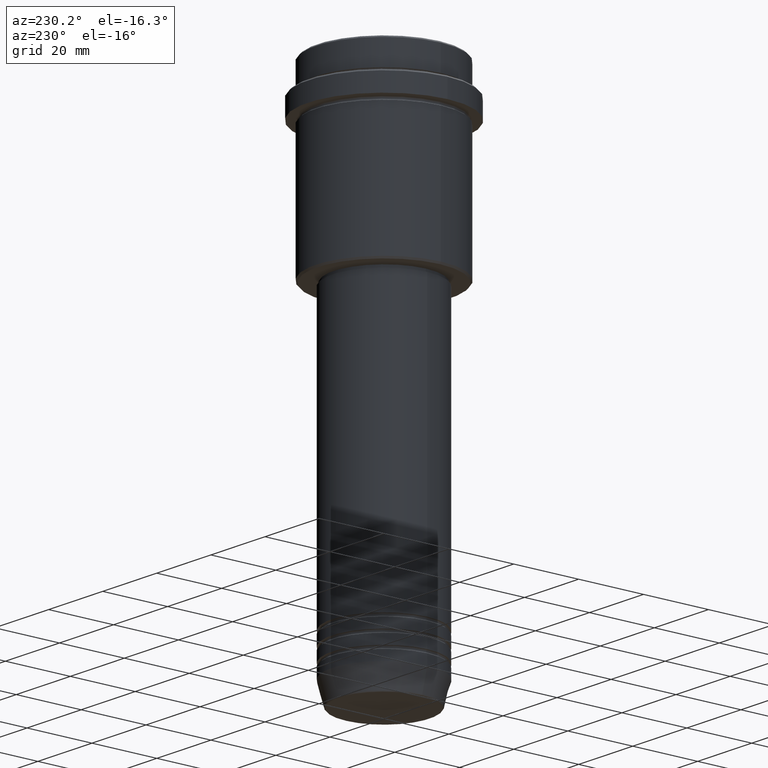
[diagram: clean part render]
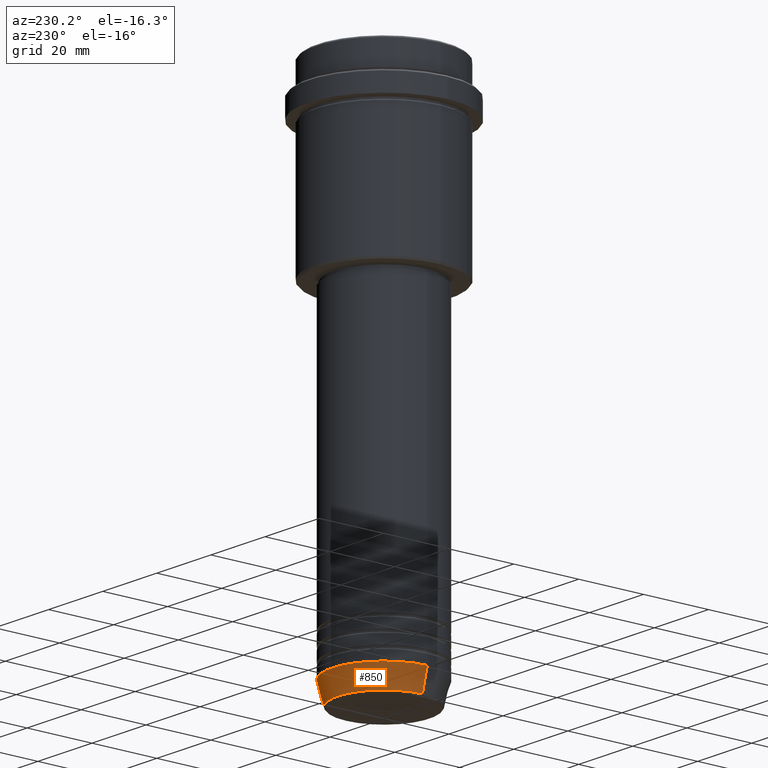
[diagram: same view with one face highlighted and labeled with its STEP entity id]
A machine part, auxiliary view. The second image highlights one B-rep face of the part: STEP entity #850.
In plain terms, the highlighted conical surface has half-angle 15 deg.
Its self-contained STEP definition (entity closure, byte-faithful):
#71 = CARTESIAN_POINT ( 'NONE',  ( 0.000000000000000000, 0.000000000000000000, -153.0000000000000000 ) ) ;
#81 = CIRCLE ( 'NONE', #879, 14.22365507213719660 ) ;
#139 = VERTEX_POINT ( 'NONE', #1101 ) ;
#147 = ORIENTED_EDGE ( 'NONE', *, *, #551, .T. ) ;
#192 = FACE_OUTER_BOUND ( 'NONE', #1365, .T. ) ;
#270 = VECTOR ( 'NONE', #626, 1000.000000000000000 ) ;
#290 = DIRECTION ( 'NONE',  ( 1.000000000000000000, 0.000000000000000000, 0.000000000000000000 ) ) ;
#306 = DIRECTION ( 'NONE',  ( -0.000000000000000000, -0.000000000000000000, 1.000000000000000000 ) ) ;
#340 = CIRCLE ( 'NONE', #588, 16.00000000000000000 ) ;
#344 = CARTESIAN_POINT ( 'NONE',  ( 0.000000000000000000, 0.000000000000000000, -153.0000000000000000 ) ) ;
#349 = VERTEX_POINT ( 'NONE', #431 ) ;
#385 = CARTESIAN_POINT ( 'NONE',  ( 14.22365507213719660, 0.000000000000000000, -159.6294095225512422 ) ) ;
#399 = ORIENTED_EDGE ( 'NONE', *, *, #1211, .F. ) ;
#429 = EDGE_CURVE ( 'NONE', #806, #663, #81, .T. ) ;
#431 = CARTESIAN_POINT ( 'NONE',  ( 16.00000000000000000, 0.000000000000000000, -153.0000000000000000 ) ) ;
#504 = CARTESIAN_POINT ( 'NONE',  ( -14.22365507213719660, 1.850665122131324126E-15, -159.6294095225512422 ) ) ;
#551 = EDGE_CURVE ( 'NONE', #663, #139, #842, .T. ) ;
#588 = AXIS2_PLACEMENT_3D ( 'NONE', #344, #767, #1195 ) ;
#626 = DIRECTION ( 'NONE',  ( -0.2588190451025213501, 3.169619151431772337E-17, 0.9659258262890680902 ) ) ;
#663 = VERTEX_POINT ( 'NONE', #504 ) ;
#680 = EDGE_CURVE ( 'NONE', #806, #349, #1349, .T. ) ;
#713 = DIRECTION ( 'NONE',  ( -0.000000000000000000, -0.000000000000000000, 1.000000000000000000 ) ) ;
#767 = DIRECTION ( 'NONE',  ( -0.000000000000000000, -0.000000000000000000, 1.000000000000000000 ) ) ;
#787 = AXIS2_PLACEMENT_3D ( 'NONE', #71, #306, #290 ) ;
#806 = VERTEX_POINT ( 'NONE', #385 ) ;
#842 = LINE ( 'NONE', #1277, #270 ) ;
#850 = ADVANCED_FACE ( 'NONE', ( #192 ), #1336, .T. ) ;
#879 = AXIS2_PLACEMENT_3D ( 'NONE', #1376, #713, #1142 ) ;
#895 = CARTESIAN_POINT ( 'NONE',  ( 16.00000000000000000, 0.000000000000000000, -153.0000000000000000 ) ) ;
#964 = ORIENTED_EDGE ( 'NONE', *, *, #680, .F. ) ;
#985 = VECTOR ( 'NONE', #1018, 1000.000000000000000 ) ;
#1018 = DIRECTION ( 'NONE',  ( 0.2588190451025213501, 0.000000000000000000, 0.9659258262890680902 ) ) ;
#1101 = CARTESIAN_POINT ( 'NONE',  ( -16.00000000000000000, 1.959434878635765131E-15, -153.0000000000000000 ) ) ;
#1142 = DIRECTION ( 'NONE',  ( 1.000000000000000000, 0.000000000000000000, 0.000000000000000000 ) ) ;
#1195 = DIRECTION ( 'NONE',  ( 1.000000000000000000, 0.000000000000000000, 0.000000000000000000 ) ) ;
#1211 = EDGE_CURVE ( 'NONE', #349, #139, #340, .T. ) ;
#1277 = CARTESIAN_POINT ( 'NONE',  ( -16.00000000000000000, 1.959434878635765131E-15, -153.0000000000000000 ) ) ;
#1311 = ORIENTED_EDGE ( 'NONE', *, *, #429, .T. ) ;
#1336 = CONICAL_SURFACE ( 'NONE', #787, 16.00000000000000000, 0.2617993877991500740 ) ;
#1349 = LINE ( 'NONE', #895, #985 ) ;
#1365 = EDGE_LOOP ( 'NONE', ( #1311, #147, #399, #964 ) ) ;
#1376 = CARTESIAN_POINT ( 'NONE',  ( 0.000000000000000000, 0.000000000000000000, -159.6294095225512422 ) ) ;